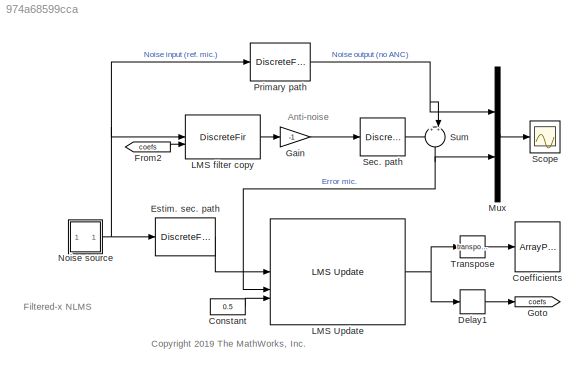
MODEL slx_974a68599cca
KIND model
CONFIG AbsTol = auto
CONFIG EnableMultiTasking = off
CONFIG FixedStep = auto
CONFIG MaxStep = auto
CONFIG MinStep = auto
CONFIG RelTol = 1e-3
CONFIG SampleTimeConstraint = Unconstrained
CONFIG SolverName = FixedStepDiscrete
CONFIG StartTime = 0.0
CONFIG StopTime = 10
BLOCK [ArrayPlot] Coefficients
  AxesScaling = Manual
  DefaultConfigurationName = dsp.scopes.ArrayPlotBlockSpecification
  GraphicalSettings = {"Style":{"BackgroundColor":[0.12941176470588237,0.12941176470588237,0.12941176470588237],"AxesColor":[0,0,0],"LabelsColor":[0.6862745098039216,0.6862745098039216,0.6862745098039216],"PreserveColors":false,"Visible":[true],"LineStyle":["-"],"LineColor":[[1,0.9098039215686274,0.39215686274509803]],"LineWidth":[1.5],"Marker":["o"],"FontSize":"small"},"Cursors":{"Enabled":false,"XLocation":[2,8],"YLo...<+497ch>
  ScopeFrameLocation = window
  Visible = on
  WasSavedAsWebScope = on
  WindowPosition = [1.000000,49.000000,1536.000000,792.000000,]
  YLimits = [-0.373494,0.373651]
BLOCK [Constant] Constant
  Value = 0.5
BLOCK [Delay] Delay1
  DelayLength = 1
  InputPortMap = u0
BLOCK [DiscreteFir] Estim. sec. path
  Coefficients = [0.466  0.533  -0.257  -0.274  -0.231  -0.175]
  InputPortMap = u0
  OutputPortMap = o0
BLOCK [From] From2
  GotoTag = coefs
BLOCK [Gain] Gain
  Gain = -1
BLOCK [Goto] Goto
  GotoTag = coefs
BLOCK [Reference] LMS Update  REF=dspadpt3/LMS Update
  SourceBlock = dspadpt3/LMS Update
  SourceType = dsp.simulink.LMSUpdate
BLOCK [DiscreteFir] LMS filter copy
  CoefSource = Input port
  InputPortMap = u0,u1
  OutputPortMap = o0
BLOCK [Mux] Mux
  DisplayOption = bar
  Inputs = 2
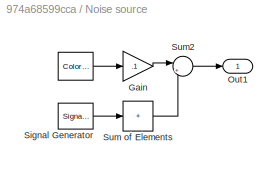
BLOCK [SubSystem] Noise source
  ShowPortLabels = none
BLOCK [Reference] Noise source/   REF=dspsrcs4/Colored Noise
  SourceBlock = dspsrcs4/Colored Noise
  SourceType = dsp.simulink.ColoredNoise
BLOCK [Gain] Noise source/Gain
  Gain = .1
BLOCK [Outport] Noise source/Out1
  VectorParamsAs1DForOutWhenUnconnected = off
BLOCK [SignalGenerator] Noise source/Signal Generator
  Commented = on
  Frequency = [150 250 350]
BLOCK [Sum] Noise source/Sum of Elements
  Commented = on
  IconShape = rectangular
  Inputs = +
BLOCK [Sum] Noise source/Sum2
  Inputs = |++
BLOCK [DiscreteFir] Primary path
  Coefficients = conv([0.5 0.5 -.3 -.3 -.2 -.2],[.1 -.1 .2 -.2 .3 -.3 .15 -.15])
  InputPortMap = u0
  OutputPortMap = o0
BLOCK [Scope] Scope
  Floating = off
  NumInputPorts = 1
  ScopeSpecificationString = Simulink.scopes.TimeScopeBlockCfg('CurrentConfiguration', extmgr.ConfigurationSet(extmgr.Configuration('Core','General UI',true),extmgr.Configuration('Core','Source UI',true),extmgr.Configuration('Sources','WiredSimulink',true),extmgr.Configuration('Visuals','Time Domain',true,'SerializedDisplays',{struct('MinYLimReal','-0.08956','MaxYLimReal','0.08545','YLabelReal','','MinYLimMag','0.00000','MaxY...<+1551ch>
BLOCK [DiscreteFir] Sec. path
  Coefficients = [0.5 0.5 -.3 -.3 -.2 -.2]
  InputPortMap = u0
  OutputPortMap = o0
BLOCK [Sum] Sum
  Inputs = ++|
  NameLocation = left
BLOCK [Math] Transpose
  Operator = transpose
  SignedPower = on
ANNOTATION (root): Anti-noise
ANNOTATION (root): <copyright redacted>
ANNOTATION (root): Filtered-x NLMS
LINE Constant:1 -> LMS Update:3
LINE Delay1:1 -> Goto:1
LINE Estim. sec. path:1 -> LMS Update:1
LINE From2:1 -> LMS filter copy:2
LINE Gain:1 -> Sec. path:1
NET LMS Update:1 -> Delay1:1, Transpose:1
LINE LMS filter copy:1 -> Gain:1
LINE Mux:1 -> Scope:1
LINE Noise source/ :1 -> Noise source/Gain:1
LINE Noise source/Gain:1 -> Noise source/Sum2:1
LINE Noise source/Signal Generator:1 -> Noise source/Sum of Elements:1
LINE Noise source/Sum of Elements:1 -> Noise source/Sum2:2
LINE Noise source/Sum2:1 -> Noise source/Out1:1
NET Noise source:1 -> Estim. sec. path:1, LMS filter copy:1, Primary path:1
NET Primary path:1 -> Mux:1, Sum:2
LINE Sec. path:1 -> Sum:1
NET Sum:1 -> LMS Update:2, Mux:2
LINE Transpose:1 -> Coefficients:1
note: NET lines group one-source signal fan-out (src -> all destinations, sorted); 1:1 wires keep LINE
